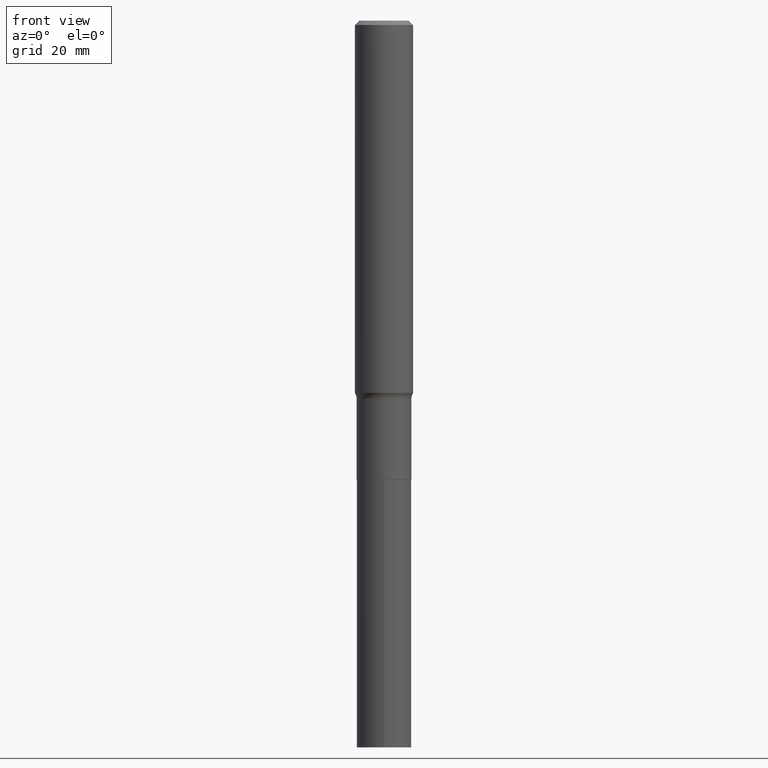
[diagram: clean part render]
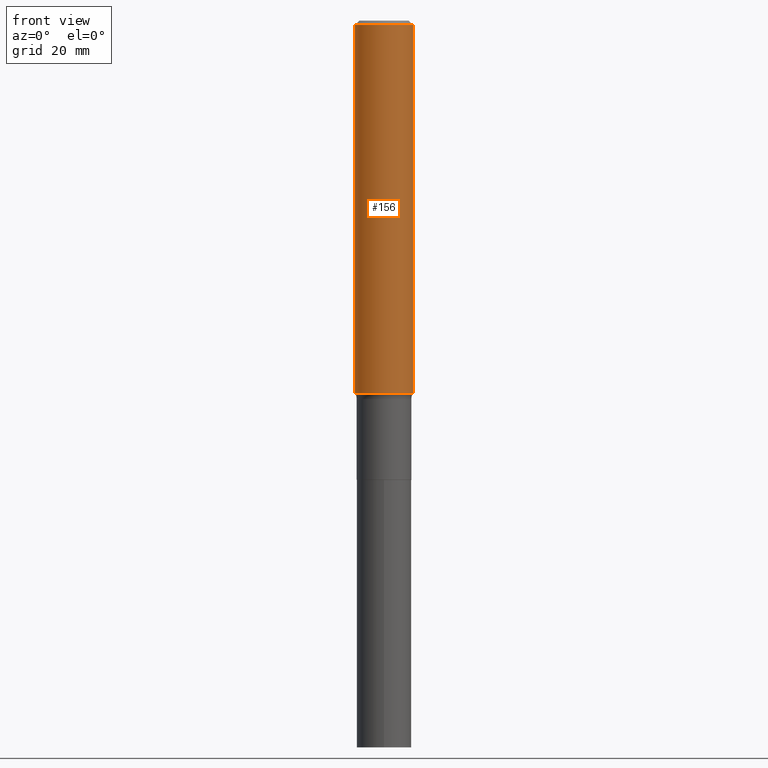
[diagram: same view with one face highlighted and labeled with its STEP entity id]
A machine part, front view. The second image highlights one B-rep face of the part: STEP entity #156.
In plain terms, the highlighted cylindrical surface (edge-blend (fillet) strip) has radius 5 mm, axis along (-0, 0, 1).
Its self-contained STEP definition (entity closure, byte-faithful):
#16 = DIRECTION ( 'NONE',  ( -2.445468806185136877E-29, 3.491481338843145188E-15, 1.000000000000000000 ) ) ;
#25 = DIRECTION ( 'NONE',  ( -2.445468806185136597E-29, 3.491481338843145583E-15, 1.000000000000000000 ) ) ;
#28 = VECTOR ( 'NONE', #16, 39.37007874015748143 ) ;
#33 = VERTEX_POINT ( 'NONE', #204 ) ;
#34 = CIRCLE ( 'NONE', #406, 0.1968500000000000250 ) ;
#60 = EDGE_CURVE ( 'NONE', #368, #70, #384, .T. ) ;
#64 = DIRECTION ( 'NONE',  ( 1.000000000000000000, -6.982962677686266711E-15, 0.000000000000000000 ) ) ;
#70 = VERTEX_POINT ( 'NONE', #312 ) ;
#80 = DIRECTION ( 'NONE',  ( 1.000000000000000000, -6.982962677686266711E-15, 4.876176775795935793E-29 ) ) ;
#100 = CARTESIAN_POINT ( 'NONE',  ( -0.1968500000000003303, -7.403257612201241372E-15, -2.520981822134387151 ) ) ;
#104 = ORIENTED_EDGE ( 'NONE', *, *, #172, .F. ) ;
#118 = CARTESIAN_POINT ( 'NONE',  ( 0.000000000000000000, 0.000000000000000000, 0.000000000000000000 ) ) ;
#132 = CIRCLE ( 'NONE', #366, 0.1968500000000003303 ) ;
#140 = CARTESIAN_POINT ( 'NONE',  ( 0.1968500000000001915, -1.374596203102542989E-15, 9.598753983154309266E-30 ) ) ;
#156 = ADVANCED_FACE ( 'NONE', ( #235 ), #375, .T. ) ;
#172 = EDGE_CURVE ( 'NONE', #70, #178, #34, .T. ) ;
#178 = VERTEX_POINT ( 'NONE', #275 ) ;
#180 = DIRECTION ( 'NONE',  ( 1.000000000000000000, -6.982962677686265922E-15, 0.000000000000000000 ) ) ;
#200 = DIRECTION ( 'NONE',  ( -2.445468806185136597E-29, 3.491481338843145583E-15, 1.000000000000000000 ) ) ;
#201 = ORIENTED_EDGE ( 'NONE', *, *, #293, .T. ) ;
#204 = CARTESIAN_POINT ( 'NONE',  ( 0.1968500000000003303, -1.017655719064754629E-14, -2.520981822134387151 ) ) ;
#224 = ORIENTED_EDGE ( 'NONE', *, *, #423, .T. ) ;
#235 = FACE_OUTER_BOUND ( 'NONE', #395, .T. ) ;
#251 = LINE ( 'NONE', #140, #392 ) ;
#255 = DIRECTION ( 'NONE',  ( -2.445468806185136877E-29, 3.491481338843145188E-15, 1.000000000000000000 ) ) ;
#275 = CARTESIAN_POINT ( 'NONE',  ( 0.1968500000000000250, -1.477690918335233294E-15, -0.02952750000000018207 ) ) ;
#276 = AXIS2_PLACEMENT_3D ( 'NONE', #118, #200, #80 ) ;
#293 = EDGE_CURVE ( 'NONE', #33, #178, #251, .T. ) ;
#312 = CARTESIAN_POINT ( 'NONE',  ( -0.1968500000000000250, -3.053824476045086846E-15, -0.02952750000000018207 ) ) ;
#318 = CARTESIAN_POINT ( 'NONE',  ( 6.164982406989410044E-29, -8.801960987545001526E-15, -2.520981822134387151 ) ) ;
#323 = CARTESIAN_POINT ( 'NONE',  ( -0.1968500000000001915, 1.398703375343758577E-15, -9.682923725166790684E-30 ) ) ;
#366 = AXIS2_PLACEMENT_3D ( 'NONE', #318, #390, #64 ) ;
#368 = VERTEX_POINT ( 'NONE', #100 ) ;
#375 = CYLINDRICAL_SURFACE ( 'NONE', #276, 0.1968500000000001915 ) ;
#384 = LINE ( 'NONE', #323, #28 ) ;
#387 = CARTESIAN_POINT ( 'NONE',  ( 7.220858017463206858E-31, -1.030947152326916240E-16, -0.02952750000000018207 ) ) ;
#390 = DIRECTION ( 'NONE',  ( -2.445468806185136597E-29, 3.491481338843145583E-15, 1.000000000000000000 ) ) ;
#392 = VECTOR ( 'NONE', #255, 39.37007874015748143 ) ;
#395 = EDGE_LOOP ( 'NONE', ( #436, #224, #201, #104 ) ) ;
#406 = AXIS2_PLACEMENT_3D ( 'NONE', #387, #25, #180 ) ;
#423 = EDGE_CURVE ( 'NONE', #368, #33, #132, .T. ) ;
#436 = ORIENTED_EDGE ( 'NONE', *, *, #60, .F. ) ;